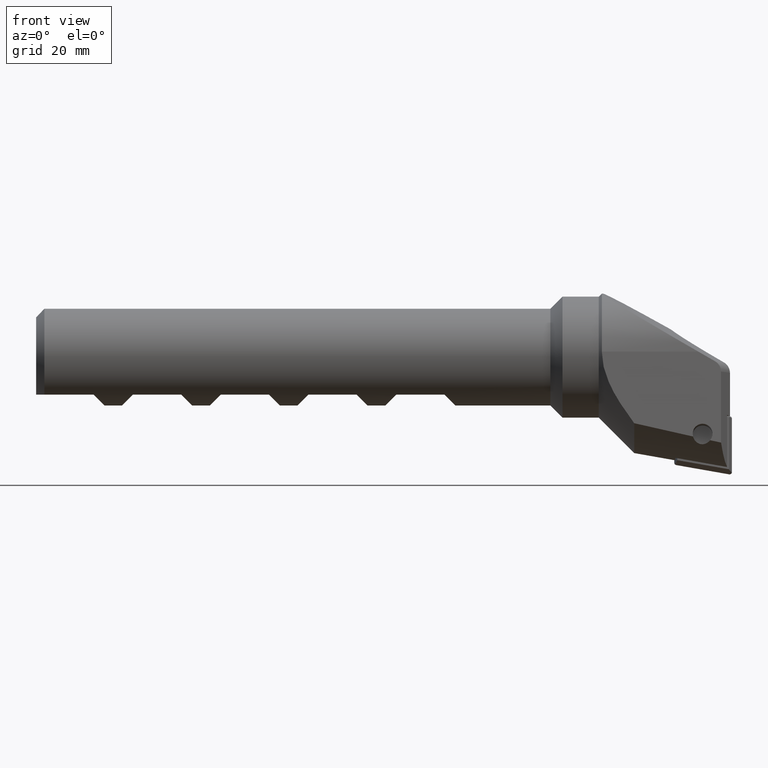
[diagram: clean part render]
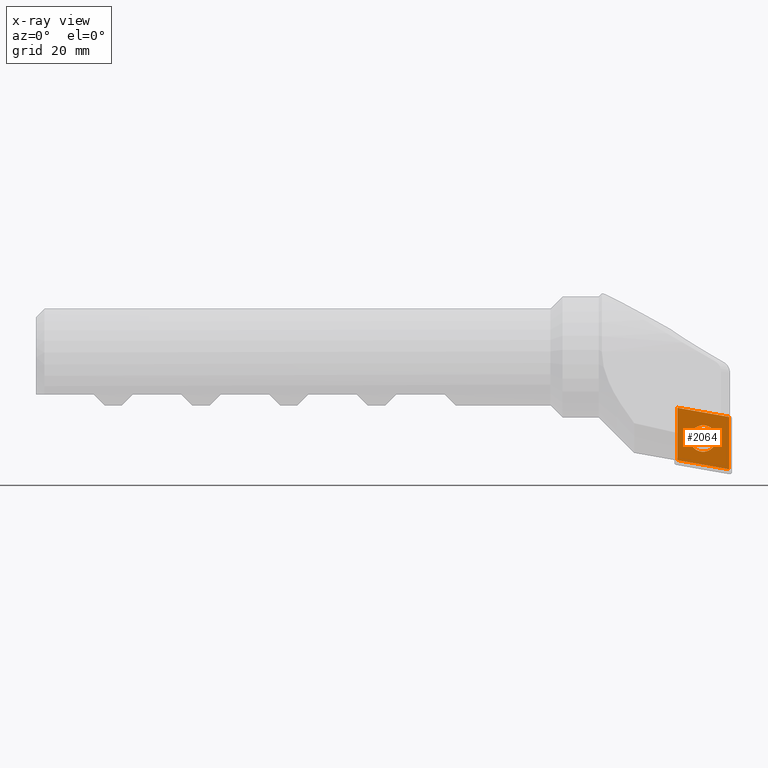
[diagram: x-ray — body ghosted, one internal face saturated and labeled with its STEP entity id]
A machine part, front view, then the same camera in x-ray: the body is ghosted and one INTERNAL B-rep face — a face not visible from any outside direction — is saturated and labeled: STEP entity #2064.
In plain terms, the highlighted planar face has unit normal (-0, -0.9962, 0.0872).
Its self-contained STEP definition (entity closure, byte-faithful):
#239 = CARTESIAN_POINT ( 'NONE',  ( 3.123903296288933800E-018, -3.970000000170531800, 2.199999999999999700 ) ) ;
#241 = CARTESIAN_POINT ( 'NONE',  ( 8.525730679142740600E-016, -3.970000000170531800, -2.199999999999999700 ) ) ;
#246 = CARTESIAN_POINT ( 'NONE',  ( -3.587188928803250100, -3.970000000170531800, 4.275045293215467400 ) ) ;
#255 = CARTESIAN_POINT ( 'NONE',  ( 5.094800586692525000, -3.970000000170530000, 4.275045293215467400 ) ) ;
#257 = CARTESIAN_POINT ( 'NONE',  ( -5.094800586692518800, -3.970000000170531800, -4.275045293215467400 ) ) ;
#260 = CARTESIAN_POINT ( 'NONE',  ( 3.587188928803255000, -3.970000000170531800, -4.275045293215467400 ) ) ;
#487 = CARTESIAN_POINT ( 'NONE',  ( 3.660572141010874200, -3.970000000170530900, -4.275045293215467400 ) ) ;
#491 = DIRECTION ( 'NONE',  ( -1.000000000000000000, -6.245004513516506800E-017, -1.419956043767697900E-018 ) ) ;
#532 = EDGE_CURVE ( 'NONE', #1208, #1205, #1432, .T. ) ;
#682 = AXIS2_PLACEMENT_3D ( 'NONE', #3170, #3171, #3172 ) ;
#688 = AXIS2_PLACEMENT_3D ( 'NONE', #3253, #3254, #3255 ) ;
#1205 = VERTEX_POINT ( 'NONE', #257 ) ;
#1208 = VERTEX_POINT ( 'NONE', #260 ) ;
#1209 = VERTEX_POINT ( 'NONE', #255 ) ;
#1218 = VERTEX_POINT ( 'NONE', #246 ) ;
#1223 = VERTEX_POINT ( 'NONE', #241 ) ;
#1225 = VERTEX_POINT ( 'NONE', #239 ) ;
#1432 = LINE ( 'NONE', #487, #1436 ) ;
#1436 = VECTOR ( 'NONE', #491, 1000.000000000000000 ) ;
#1513 = FACE_BOUND ( 'NONE', #4793, .T. ) ;
#1516 = FACE_OUTER_BOUND ( 'NONE', #4794, .T. ) ;
#1785 = CIRCLE ( 'NONE', #682, 2.199999999999999700 ) ;
#1823 = CIRCLE ( 'NONE', #688, 2.199999999999999700 ) ;
#1935 = LINE ( 'NONE', #3716, #1939 ) ;
#1939 = VECTOR ( 'NONE', #3721, 1000.000000000000000 ) ;
#1982 = AXIS2_PLACEMENT_3D ( 'NONE', #2502, #2507, #2508 ) ;
#2064 = ADVANCED_FACE ( 'NONE', ( #1513, #1516 ), #2505, .T. ) ;
#2236 = EDGE_CURVE ( 'NONE', #1225, #1223, #1785, .T. ) ;
#2267 = EDGE_CURVE ( 'NONE', #1223, #1225, #1823, .T. ) ;
#2502 = CARTESIAN_POINT ( 'NONE',  ( -3.660572141010868000, -3.970000000170531800, 4.362499999999998000 ) ) ;
#2505 = PLANE ( 'NONE',  #1982 ) ;
#2507 = DIRECTION ( 'NONE',  ( -6.245004513516504300E-017, -1.000000000000000000, 2.477702739568115500E-017 ) ) ;
#2508 = DIRECTION ( 'NONE',  ( -1.419956043767697500E-018, -2.477702739568115500E-017, -1.000000000000000000 ) ) ;
#3170 = CARTESIAN_POINT ( 'NONE',  ( 0.0000000000000000000, -3.970000000170531800, 0.0000000000000000000 ) ) ;
#3171 = DIRECTION ( 'NONE',  ( 6.245004513516504300E-017, 1.000000000000000000, 2.477702739568114900E-017 ) ) ;
#3172 = DIRECTION ( 'NONE',  ( 1.419956043767697300E-018, 0.0000000000000000000, 1.000000000000000000 ) ) ;
#3253 = CARTESIAN_POINT ( 'NONE',  ( 0.0000000000000000000, -3.970000000170531800, 0.0000000000000000000 ) ) ;
#3254 = DIRECTION ( 'NONE',  ( 6.245004513516504300E-017, 1.000000000000000000, 2.477702739568114900E-017 ) ) ;
#3255 = DIRECTION ( 'NONE',  ( 1.419956043767697300E-018, 0.0000000000000000000, 1.000000000000000000 ) ) ;
#3473 = EDGE_CURVE ( 'NONE', #1218, #1209, #1935, .T. ) ;
#3479 = EDGE_CURVE ( 'NONE', #1205, #1218, #4323, .T. ) ;
#3716 = CARTESIAN_POINT ( 'NONE',  ( -3.660572141010868000, -3.970000000170531800, 4.275045293215467400 ) ) ;
#3721 = DIRECTION ( 'NONE',  ( 1.000000000000000000, 6.245004513516506800E-017, 9.932076569845222200E-017 ) ) ;
#3735 = CARTESIAN_POINT ( 'NONE',  ( -5.112898974413441000, -3.970000000170530900, -4.377686350461529800 ) ) ;
#3736 = DIRECTION ( 'NONE',  ( 0.1736481776669341100, 3.382710778154773800E-017, 0.9848077530122073500 ) ) ;
#4187 = CARTESIAN_POINT ( 'NONE',  ( 5.112898974413449000, -3.970000000170530000, 4.377686350461529800 ) ) ;
#4188 = DIRECTION ( 'NONE',  ( -0.1736481776669342200, -3.295974604355933500E-017, -0.9848077530122073500 ) ) ;
#4323 = LINE ( 'NONE', #3735, #4324 ) ;
#4324 = VECTOR ( 'NONE', #3736, 1000.000000000000200 ) ;
#4402 = LINE ( 'NONE', #4187, #4430 ) ;
#4430 = VECTOR ( 'NONE', #4188, 1000.000000000000200 ) ;
#4610 = EDGE_CURVE ( 'NONE', #1209, #1208, #4402, .T. ) ;
#4793 = EDGE_LOOP ( 'NONE', ( #4880, #4879 ) ) ;
#4794 = EDGE_LOOP ( 'NONE', ( #4927, #4878, #4877, #4942 ) ) ;
#4877 = ORIENTED_EDGE ( 'NONE', *, *, #532, .F. ) ;
#4878 = ORIENTED_EDGE ( 'NONE', *, *, #3479, .F. ) ;
#4879 = ORIENTED_EDGE ( 'NONE', *, *, #2267, .T. ) ;
#4880 = ORIENTED_EDGE ( 'NONE', *, *, #2236, .T. ) ;
#4927 = ORIENTED_EDGE ( 'NONE', *, *, #3473, .F. ) ;
#4942 = ORIENTED_EDGE ( 'NONE', *, *, #4610, .F. ) ;